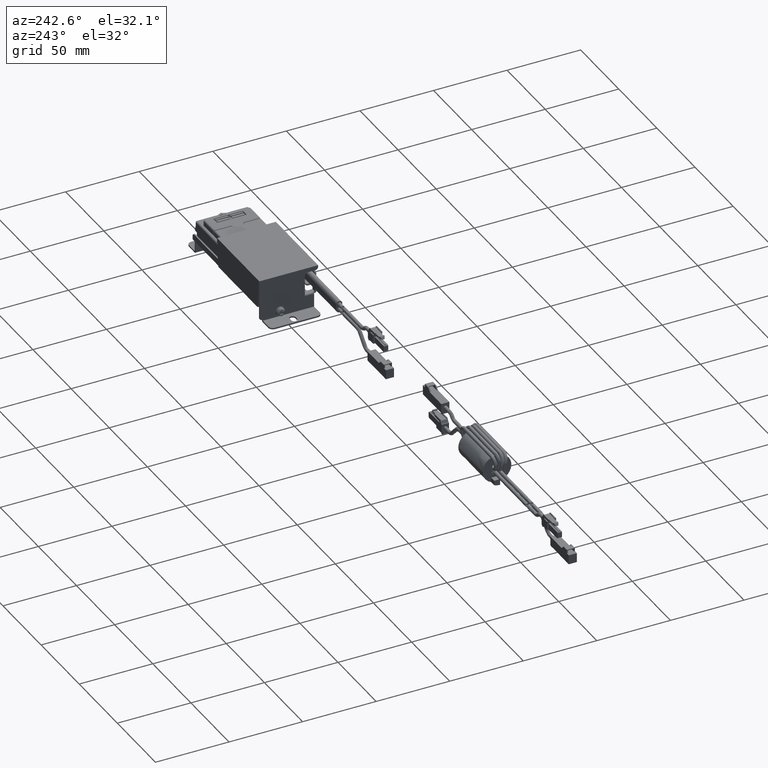
[diagram: clean part render]
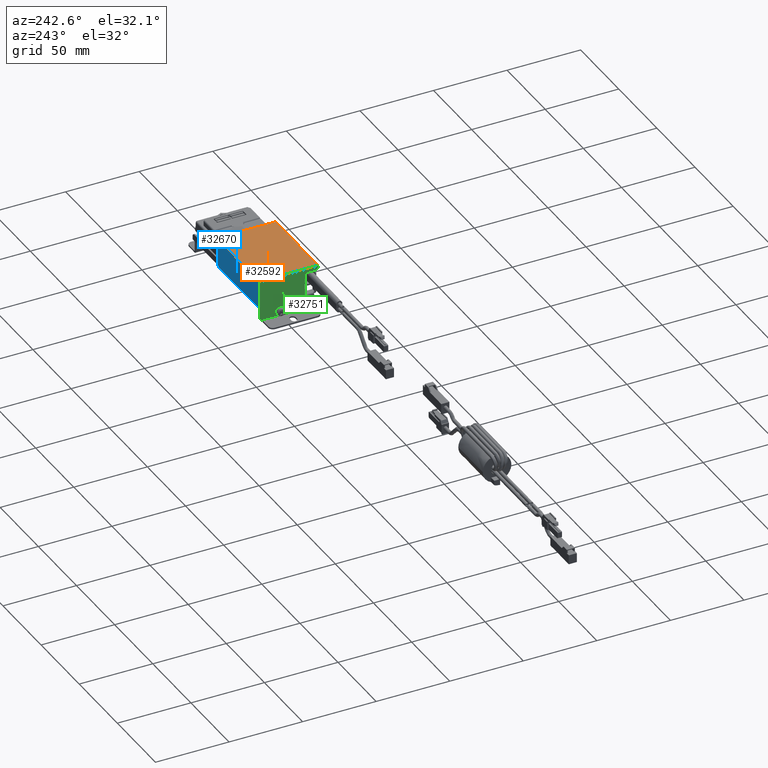
[diagram: same view with three faces highlighted in distinct colors, each labeled with its STEP entity id]
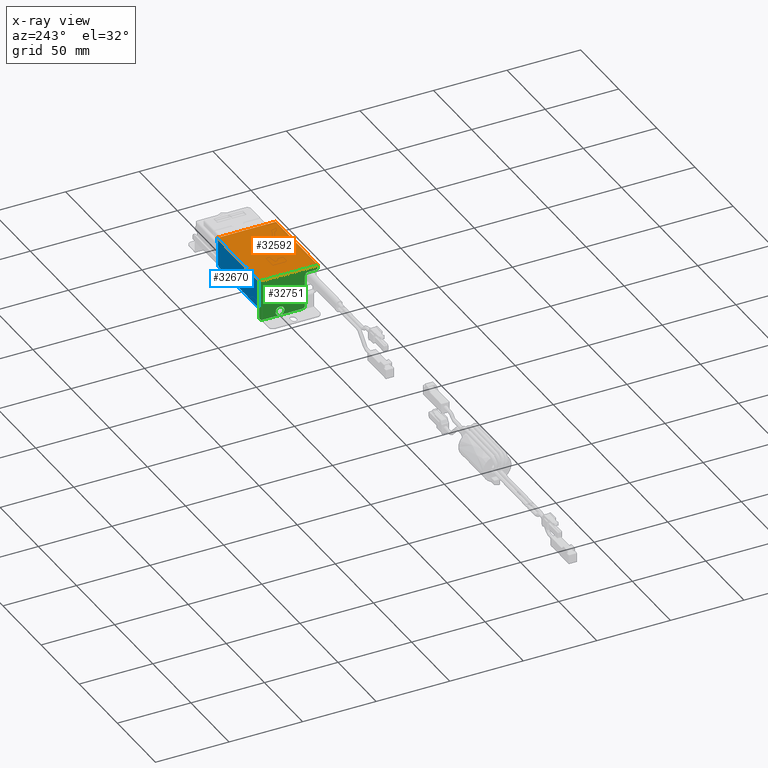
[diagram: x-ray of the same camera — body ghosted, the three highlighted faces saturated]
A machine part, auxiliary view with three faces highlighted in distinct colors.
The next image is the same camera in x-ray (body ghosted, the three faces saturated) — at least one of them is partly hidden behind the body in this view.
Their STEP definitions:

[orange] entity #32592 — the highlighted face is a freeform B-spline surface patch.
#32557=CARTESIAN_POINT('',(-98.757417761772643,21.998011076377260,30.0));
#32558=CARTESIAN_POINT('',(-37.697591944709004,21.998011076377260,30.0));
#32559=CARTESIAN_POINT('',(-98.757417761772643,-21.998012149262159,30.0));
#32560=CARTESIAN_POINT('',(-37.697591944709004,-21.998012149262159,30.0));
#32561=B_SPLINE_SURFACE_WITH_KNOTS('',1,1,((#32557,#32559),(#32558,#32560)),.UNSPECIFIED.,.F.,.F.,.U.,(2,2),(2,2),(0.0,61.059825817063640),(0.0,43.996023225639419),.UNSPECIFIED.);
#32562=CARTESIAN_POINT('',(-95.984494661863692,-20.000010140836299,30.0));
#32563=VERTEX_POINT('',#32562);
#32564=CARTESIAN_POINT('',(-95.984494661863692,20.000010140835549,30.0));
#32565=VERTEX_POINT('',#32564);
#32566=CARTESIAN_POINT('',(-95.984494661863692,-20.000010140836299,30.0));
#32567=CARTESIAN_POINT('',(-95.984494661863692,20.000010140835549,30.0));
#32568=QUASI_UNIFORM_CURVE('',1,(#32566,#32567),.UNSPECIFIED.,.F.,.U.);
#32569=EDGE_CURVE('',#32563,#32565,#32568,.T.);
#32570=ORIENTED_EDGE('',*,*,#32569,.F.);
#32571=CARTESIAN_POINT('',(-40.470516533618898,-20.000010140836299,30.0));
#32572=VERTEX_POINT('',#32571);
#32573=CARTESIAN_POINT('',(-40.470516533618898,-20.000010140836299,30.0));
#32574=CARTESIAN_POINT('',(-95.984494661863692,-20.000010140836299,30.0));
#32575=QUASI_UNIFORM_CURVE('',1,(#32573,#32574),.UNSPECIFIED.,.F.,.U.);
#32576=EDGE_CURVE('',#32572,#32563,#32575,.T.);
#32577=ORIENTED_EDGE('',*,*,#32576,.F.);
#32578=CARTESIAN_POINT('',(-40.470516533618898,20.000010140835549,30.0));
#32579=VERTEX_POINT('',#32578);
#32580=CARTESIAN_POINT('',(-40.470516533618898,20.000010140835549,30.0));
#32581=CARTESIAN_POINT('',(-40.470516533618898,-20.000010140836299,30.0));
#32582=QUASI_UNIFORM_CURVE('',1,(#32580,#32581),.UNSPECIFIED.,.F.,.U.);
#32583=EDGE_CURVE('',#32579,#32572,#32582,.T.);
#32584=ORIENTED_EDGE('',*,*,#32583,.F.);
#32585=CARTESIAN_POINT('',(-95.984494661863692,20.000010140835549,30.0));
#32586=CARTESIAN_POINT('',(-40.470516533618898,20.000010140835549,30.0));
#32587=QUASI_UNIFORM_CURVE('',1,(#32585,#32586),.UNSPECIFIED.,.F.,.U.);
#32588=EDGE_CURVE('',#32565,#32579,#32587,.T.);
#32589=ORIENTED_EDGE('',*,*,#32588,.F.);
#32590=EDGE_LOOP('',(#32570,#32577,#32584,#32589));
#32591=FACE_OUTER_BOUND('',#32590,.T.);
#32592=ADVANCED_FACE('',(#32591),#32561,.F.);

[blue] entity #32670 — the highlighted face is a freeform B-spline surface patch.
#31427=CARTESIAN_POINT('',(-40.970516533618898,20.000010140835549,29.500000000000000));
#31428=VERTEX_POINT('',#31427);
#31469=CARTESIAN_POINT('',(-95.485565534138303,20.000010140835499,29.500000000000000));
#31470=VERTEX_POINT('',#31469);
#31476=CARTESIAN_POINT('',(-94.987650490004995,20.000010140835549,29.500000000000000));
#31477=VERTEX_POINT('',#31476);
#31478=CARTESIAN_POINT('',(-95.485565534138303,20.000010140835499,29.500000000000000));
#31479=CARTESIAN_POINT('',(-94.987650490004995,20.000010140835549,29.500000000000000));
#31480=QUASI_UNIFORM_CURVE('',1,(#31478,#31479),.UNSPECIFIED.,.F.,.U.);
#31481=EDGE_CURVE('',#31470,#31477,#31480,.T.);
#31497=CARTESIAN_POINT('',(-41.467360705477397,20.000010140835499,29.500000000000000));
#31498=VERTEX_POINT('',#31497);
#31504=CARTESIAN_POINT('',(-41.467360705477397,20.000010140835499,29.500000000000000));
#31505=CARTESIAN_POINT('',(-40.970516533618898,20.000010140835549,29.500000000000000));
#31506=QUASI_UNIFORM_CURVE('',1,(#31504,#31505),.UNSPECIFIED.,.F.,.U.);
#31507=EDGE_CURVE('',#31498,#31428,#31506,.T.);
#31526=CARTESIAN_POINT('',(-95.485565534138303,20.000010140835499,3.962616822429930));
#31527=VERTEX_POINT('',#31526);
#31541=CARTESIAN_POINT('',(-95.485565534138303,20.000010140835499,29.500000000000000));
#31542=CARTESIAN_POINT('',(-95.485565534138303,20.000010140835499,3.962616822429930));
#31543=QUASI_UNIFORM_CURVE('',1,(#31541,#31542),.UNSPECIFIED.,.F.,.U.);
#31544=EDGE_CURVE('',#31470,#31527,#31543,.T.);
#31689=CARTESIAN_POINT('',(-40.470516533618898,20.000010140835549,26.952905957944100));
#31690=VERTEX_POINT('',#31689);
#31707=CARTESIAN_POINT('',(-40.970516533618898,20.000010140835549,26.952905957944100));
#31708=VERTEX_POINT('',#31707);
#31718=CARTESIAN_POINT('',(-40.470516533618898,20.000010140835549,26.952905957944100));
#31719=CARTESIAN_POINT('',(-40.970516533618898,20.000010140835549,26.952905957944100));
#31720=QUASI_UNIFORM_CURVE('',1,(#31718,#31719),.UNSPECIFIED.,.F.,.U.);
#31721=EDGE_CURVE('',#31690,#31708,#31720,.T.);
#31731=CARTESIAN_POINT('',(-40.970516533618898,20.000010140835549,26.952905957944100));
#31732=CARTESIAN_POINT('',(-40.970516533618898,20.000010140835549,29.500000000000000));
#31733=QUASI_UNIFORM_CURVE('',1,(#31731,#31732),.UNSPECIFIED.,.F.,.U.);
#31734=EDGE_CURVE('',#31708,#31428,#31733,.T.);
#31840=CARTESIAN_POINT('',(-43.467360705477397,20.000010140835499,10.436299325026100));
#31841=VERTEX_POINT('',#31840);
#31842=CARTESIAN_POINT('',(-41.467360705477397,20.000010140835499,12.436299325026100));
#31843=VERTEX_POINT('',#31842);
#31844=CARTESIAN_POINT('',(-43.467360705477397,20.000010140835499,10.436299325026100));
#31845=CARTESIAN_POINT('',(-41.467360705477404,20.000010140835499,10.436299325026098));
#31846=CARTESIAN_POINT('',(-41.467360705477397,20.000010140835499,12.436299325026100));
#31854=(BOUNDED_CURVE()B_SPLINE_CURVE(2,(#31844,#31845,#31846),.UNSPECIFIED.,.F.,.U.)CURVE()GEOMETRIC_REPRESENTATION_ITEM()QUASI_UNIFORM_CURVE()RATIONAL_B_SPLINE_CURVE((1.0,0.707106781186548,1.0))REPRESENTATION_ITEM(''));
#31855=EDGE_CURVE('',#31841,#31843,#31854,.T.);
#31876=CARTESIAN_POINT('',(-92.987650490004995,20.000010140835499,10.436299325026081));
#31877=VERTEX_POINT('',#31876);
#31878=CARTESIAN_POINT('',(-92.987650490004995,20.000010140835499,10.436299325026081));
#31879=CARTESIAN_POINT('',(-43.467360705477397,20.000010140835499,10.436299325026100));
#31880=QUASI_UNIFORM_CURVE('',1,(#31878,#31879),.UNSPECIFIED.,.F.,.U.);
#31881=EDGE_CURVE('',#31877,#31841,#31880,.T.);
#31907=CARTESIAN_POINT('',(-94.987650490004995,20.000010140835499,12.436299325026081));
#31908=VERTEX_POINT('',#31907);
#31909=CARTESIAN_POINT('',(-94.987650490004995,20.000010140835499,12.436299325026081));
#31910=CARTESIAN_POINT('',(-94.987650490004995,20.000010140835499,10.436299325026081));
#31911=CARTESIAN_POINT('',(-92.987650490004995,20.000010140835499,10.436299325026081));
#31919=(BOUNDED_CURVE()B_SPLINE_CURVE(2,(#31909,#31910,#31911),.UNSPECIFIED.,.F.,.U.)CURVE()GEOMETRIC_REPRESENTATION_ITEM()QUASI_UNIFORM_CURVE()RATIONAL_B_SPLINE_CURVE((1.0,0.707106781186548,1.0))REPRESENTATION_ITEM(''));
#31920=EDGE_CURVE('',#31908,#31877,#31919,.T.);
#31938=CARTESIAN_POINT('',(-94.987650490004995,20.000010140835549,29.500000000000000));
#31939=CARTESIAN_POINT('',(-94.987650490004995,20.000010140835499,12.436299325026081));
#31940=QUASI_UNIFORM_CURVE('',1,(#31938,#31939),.UNSPECIFIED.,.F.,.U.);
#31941=EDGE_CURVE('',#31477,#31908,#31940,.T.);
#31956=CARTESIAN_POINT('',(-41.467360705477397,20.000010140835499,12.436299325026100));
#31957=CARTESIAN_POINT('',(-41.467360705477397,20.000010140835499,29.500000000000000));
#31958=QUASI_UNIFORM_CURVE('',1,(#31956,#31957),.UNSPECIFIED.,.F.,.U.);
#31959=EDGE_CURVE('',#31843,#31498,#31958,.T.);
#32031=CARTESIAN_POINT('',(-95.984494661863692,20.000010140835549,3.962616822429930));
#32032=VERTEX_POINT('',#32031);
#32046=CARTESIAN_POINT('',(-95.485565534138303,20.000010140835499,3.962616822429930));
#32047=CARTESIAN_POINT('',(-95.984494661863692,20.000010140835549,3.962616822429930));
#32048=QUASI_UNIFORM_CURVE('',1,(#32046,#32047),.UNSPECIFIED.,.F.,.U.);
#32049=EDGE_CURVE('',#31527,#32032,#32048,.T.);
#32564=CARTESIAN_POINT('',(-95.984494661863692,20.000010140835549,30.0));
#32565=VERTEX_POINT('',#32564);
#32578=CARTESIAN_POINT('',(-40.470516533618898,20.000010140835549,30.0));
#32579=VERTEX_POINT('',#32578);
#32585=CARTESIAN_POINT('',(-95.984494661863692,20.000010140835549,30.0));
#32586=CARTESIAN_POINT('',(-40.470516533618898,20.000010140835549,30.0));
#32587=QUASI_UNIFORM_CURVE('',1,(#32585,#32586),.UNSPECIFIED.,.F.,.U.);
#32588=EDGE_CURVE('',#32565,#32579,#32587,.T.);
#32634=CARTESIAN_POINT('',(-40.470516533618898,20.000010140835549,26.952905957944100));
#32635=CARTESIAN_POINT('',(-40.470516533618898,20.000010140835549,30.0));
#32636=QUASI_UNIFORM_CURVE('',1,(#32634,#32635),.UNSPECIFIED.,.F.,.U.);
#32637=EDGE_CURVE('',#31690,#32579,#32636,.T.);
#32645=CARTESIAN_POINT('',(-98.757417761772643,20.000010140835549,31.300567239254129));
#32646=CARTESIAN_POINT('',(-98.757417761772643,20.000010140835549,2.662048884798765));
#32647=CARTESIAN_POINT('',(-37.697591944709004,20.000010140835549,31.300567239254129));
#32648=CARTESIAN_POINT('',(-37.697591944709004,20.000010140835549,2.662048884798765));
#32649=B_SPLINE_SURFACE_WITH_KNOTS('',1,1,((#32645,#32647),(#32646,#32648)),.UNSPECIFIED.,.F.,.F.,.U.,(2,2),(2,2),(0.0,28.638518354455361),(0.0,61.059825817063640),.UNSPECIFIED.);
#32650=ORIENTED_EDGE('',*,*,#32637,.F.);
#32651=ORIENTED_EDGE('',*,*,#31721,.T.);
#32652=ORIENTED_EDGE('',*,*,#31734,.T.);
#32653=ORIENTED_EDGE('',*,*,#31507,.F.);
#32654=ORIENTED_EDGE('',*,*,#31959,.F.);
#32655=ORIENTED_EDGE('',*,*,#31855,.F.);
#32656=ORIENTED_EDGE('',*,*,#31881,.F.);
#32657=ORIENTED_EDGE('',*,*,#31920,.F.);
#32658=ORIENTED_EDGE('',*,*,#31941,.F.);
#32659=ORIENTED_EDGE('',*,*,#31481,.F.);
#32660=ORIENTED_EDGE('',*,*,#31544,.T.);
#32661=ORIENTED_EDGE('',*,*,#32049,.T.);
#32662=CARTESIAN_POINT('',(-95.984494661863692,20.000010140835549,3.962616822429930));
#32663=CARTESIAN_POINT('',(-95.984494661863692,20.000010140835549,30.0));
#32664=QUASI_UNIFORM_CURVE('',1,(#32662,#32663),.UNSPECIFIED.,.F.,.U.);
#32665=EDGE_CURVE('',#32032,#32565,#32664,.T.);
#32666=ORIENTED_EDGE('',*,*,#32665,.T.);
#32667=ORIENTED_EDGE('',*,*,#32588,.T.);
#32668=EDGE_LOOP('',(#32650,#32651,#32652,#32653,#32654,#32655,#32656,#32657,#32658,#32659,#32660,#32661,#32666,#32667));
#32669=FACE_OUTER_BOUND('',#32668,.T.);
#32670=ADVANCED_FACE('',(#32669),#32649,.F.);

[green] entity #32751 — the highlighted face is a freeform B-spline surface patch.
#31979=CARTESIAN_POINT('',(-95.984494661863394,-10.999989859164501,3.962616822429935));
#31980=VERTEX_POINT('',#31979);
#31986=CARTESIAN_POINT('',(-95.984494661863394,-8.999989859164502,1.962616822429935));
#31987=VERTEX_POINT('',#31986);
#31988=CARTESIAN_POINT('',(-95.984494661863692,-8.999989859164502,1.962616822429935));
#31989=CARTESIAN_POINT('',(-95.984494661863707,-10.999989859164502,1.962616822429935));
#31990=CARTESIAN_POINT('',(-95.984494661863692,-10.999989859164501,3.962616822429935));
#31998=(BOUNDED_CURVE()B_SPLINE_CURVE(2,(#31988,#31989,#31990),.UNSPECIFIED.,.F.,.U.)CURVE()GEOMETRIC_REPRESENTATION_ITEM()QUASI_UNIFORM_CURVE()RATIONAL_B_SPLINE_CURVE((1.0,0.707106781186548,1.0))REPRESENTATION_ITEM(''));
#31999=EDGE_CURVE('',#31987,#31980,#31998,.T.);
#32024=CARTESIAN_POINT('',(-95.984494661863394,18.000010140835499,1.962616822429935));
#32025=VERTEX_POINT('',#32024);
#32031=CARTESIAN_POINT('',(-95.984494661863692,20.000010140835549,3.962616822429930));
#32032=VERTEX_POINT('',#32031);
#32033=CARTESIAN_POINT('',(-95.984494661863692,20.000010140835549,3.962616822429930));
#32034=CARTESIAN_POINT('',(-95.984494661863707,20.000010140835556,1.962616822429930));
#32035=CARTESIAN_POINT('',(-95.984494661863692,18.000010140835549,1.962616822429930));
#32043=(BOUNDED_CURVE()B_SPLINE_CURVE(2,(#32033,#32034,#32035),.UNSPECIFIED.,.F.,.U.)CURVE()GEOMETRIC_REPRESENTATION_ITEM()QUASI_UNIFORM_CURVE()RATIONAL_B_SPLINE_CURVE((1.0,0.707106781186548,1.0))REPRESENTATION_ITEM(''));
#32044=EDGE_CURVE('',#32032,#32025,#32043,.T.);
#32069=CARTESIAN_POINT('',(-95.984494661863692,-20.000010140836299,29.0));
#32070=VERTEX_POINT('',#32069);
#32076=CARTESIAN_POINT('',(-95.984494661863593,-18.000010140836299,27.0));
#32077=VERTEX_POINT('',#32076);
#32078=CARTESIAN_POINT('',(-95.984494661863692,-18.000010140836299,27.0));
#32079=CARTESIAN_POINT('',(-95.984494661863707,-20.000010140836306,27.000000000000011));
#32080=CARTESIAN_POINT('',(-95.984494661863692,-20.000010140836299,29.0));
#32088=(BOUNDED_CURVE()B_SPLINE_CURVE(2,(#32078,#32079,#32080),.UNSPECIFIED.,.F.,.U.)CURVE()GEOMETRIC_REPRESENTATION_ITEM()QUASI_UNIFORM_CURVE()RATIONAL_B_SPLINE_CURVE((1.0,0.707106781186548,1.0))REPRESENTATION_ITEM(''));
#32089=EDGE_CURVE('',#32077,#32070,#32088,.T.);
#32114=CARTESIAN_POINT('',(-95.984494661863593,-12.999989859164501,27.0));
#32115=VERTEX_POINT('',#32114);
#32121=CARTESIAN_POINT('',(-95.984494661863593,-10.999989859164501,25.0));
#32122=VERTEX_POINT('',#32121);
#32123=CARTESIAN_POINT('',(-95.984494661863593,-10.999989859164501,25.0));
#32124=CARTESIAN_POINT('',(-95.984494661863650,-10.996412355895060,25.492103746930109));
#32125=CARTESIAN_POINT('',(-95.984494661863806,-11.316906515024639,26.304829202208321));
#32126=CARTESIAN_POINT('',(-95.984494661863820,-12.214554579702121,26.903894178080701));
#32127=CARTESIAN_POINT('',(-95.984494661863451,-12.770976062739759,27.000036677265619));
#32128=CARTESIAN_POINT('',(-95.984494661863593,-12.999989859164501,27.0));
#32129=B_SPLINE_CURVE_WITH_KNOTS('',3,(#32123,#32124,#32125,#32126,#32127,#32128),.UNSPECIFIED.,.F.,.U.,(4,1,1,4),(0.000004423942978,1.473088834517658,2.454632555291036,3.141907768738584),.UNSPECIFIED.);
#32130=EDGE_CURVE('',#32122,#32115,#32129,.T.);
#32145=CARTESIAN_POINT('',(-95.984494661863593,-18.000010140836299,27.0));
#32146=CARTESIAN_POINT('',(-95.984494661863593,-12.999989859164501,27.0));
#32147=QUASI_UNIFORM_CURVE('',1,(#32145,#32146),.UNSPECIFIED.,.F.,.U.);
#32148=EDGE_CURVE('',#32077,#32115,#32147,.T.);
#32161=CARTESIAN_POINT('',(-95.984494661863394,-10.999989859164501,3.962616822429935));
#32162=CARTESIAN_POINT('',(-95.984494661863593,-10.999989859164501,25.0));
#32163=QUASI_UNIFORM_CURVE('',1,(#32161,#32162),.UNSPECIFIED.,.F.,.U.);
#32164=EDGE_CURVE('',#31980,#32122,#32163,.T.);
#32177=CARTESIAN_POINT('',(-95.984494661863692,5.981065031152370,1.962616822429935));
#32178=VERTEX_POINT('',#32177);
#32179=CARTESIAN_POINT('',(-95.984494661863394,-8.999989859164502,1.962616822429935));
#32180=CARTESIAN_POINT('',(-95.984494661863692,5.981065031152370,1.962616822429935));
#32181=QUASI_UNIFORM_CURVE('',1,(#32179,#32180),.UNSPECIFIED.,.F.,.U.);
#32182=EDGE_CURVE('',#31987,#32178,#32181,.T.);
#32184=CARTESIAN_POINT('',(-95.984494661863692,5.981065031152370,1.962616822429935));
#32185=CARTESIAN_POINT('',(-95.984494661863394,18.000010140835499,1.962616822429935));
#32186=QUASI_UNIFORM_CURVE('',1,(#32184,#32185),.UNSPECIFIED.,.F.,.U.);
#32187=EDGE_CURVE('',#32178,#32025,#32186,.T.);
#32562=CARTESIAN_POINT('',(-95.984494661863692,-20.000010140836299,30.0));
#32563=VERTEX_POINT('',#32562);
#32564=CARTESIAN_POINT('',(-95.984494661863692,20.000010140835549,30.0));
#32565=VERTEX_POINT('',#32564);
#32566=CARTESIAN_POINT('',(-95.984494661863692,-20.000010140836299,30.0));
#32567=CARTESIAN_POINT('',(-95.984494661863692,20.000010140835549,30.0));
#32568=QUASI_UNIFORM_CURVE('',1,(#32566,#32567),.UNSPECIFIED.,.F.,.U.);
#32569=EDGE_CURVE('',#32563,#32565,#32568,.T.);
#32606=CARTESIAN_POINT('',(-95.984494661863692,-20.000010140836299,29.0));
#32607=CARTESIAN_POINT('',(-95.984494661863692,-20.000010140836299,30.0));
#32608=QUASI_UNIFORM_CURVE('',1,(#32606,#32607),.UNSPECIFIED.,.F.,.U.);
#32609=EDGE_CURVE('',#32070,#32563,#32608,.T.);
#32662=CARTESIAN_POINT('',(-95.984494661863692,20.000010140835549,3.962616822429930));
#32663=CARTESIAN_POINT('',(-95.984494661863692,20.000010140835549,30.0));
#32664=QUASI_UNIFORM_CURVE('',1,(#32662,#32663),.UNSPECIFIED.,.F.,.U.);
#32665=EDGE_CURVE('',#32032,#32565,#32664,.T.);
#32671=CARTESIAN_POINT('',(-95.984494661863692,-21.998011076378010,31.400467235377739));
#32672=CARTESIAN_POINT('',(-95.984494661863692,-21.998011076378010,0.562148835030979));
#32673=CARTESIAN_POINT('',(-95.984494661863692,21.998012149261410,31.400467235377739));
#32674=CARTESIAN_POINT('',(-95.984494661863692,21.998012149261410,0.562148835030979));
#32675=B_SPLINE_SURFACE_WITH_KNOTS('',1,1,((#32671,#32673),(#32672,#32674)),.UNSPECIFIED.,.F.,.F.,.U.,(2,2),(2,2),(0.0,30.838318400346761),(0.0,43.996023225639419),.UNSPECIFIED.);
#32676=ORIENTED_EDGE('',*,*,#32187,.F.);
#32677=CARTESIAN_POINT('',(-95.984494661863692,8.966019600760035,5.135716980534365));
#32678=VERTEX_POINT('',#32677);
#32679=CARTESIAN_POINT('',(-95.984494661863692,8.966019600760037,5.135716980534365));
#32680=CARTESIAN_POINT('',(-95.984494661863692,8.971597546728804,5.044518370101816));
#32681=CARTESIAN_POINT('',(-95.984494661863692,8.971597546728804,4.953149338006370));
#32682=CARTESIAN_POINT('',(-95.984494661863707,8.971597546728804,1.962616822429935));
#32683=CARTESIAN_POINT('',(-95.984494661863692,5.981065031152370,1.962616822429935));
#32691=(BOUNDED_CURVE()B_SPLINE_CURVE(2,(#32679,#32680,#32681,#32682,#32683),.UNSPECIFIED.,.F.,.U.)B_SPLINE_CURVE_WITH_KNOTS((3,2,3),(0.739332962240780,0.750000000000000,1.0),.UNSPECIFIED.)CURVE()GEOMETRIC_REPRESENTATION_ITEM()RATIONAL_B_SPLINE_CURVE((0.976072041670656,0.987502787901990,1.0,0.707106781186547,1.0))REPRESENTATION_ITEM(''));
#32692=EDGE_CURVE('',#32678,#32178,#32691,.T.);
#32693=ORIENTED_EDGE('',*,*,#32692,.F.);
#32694=CARTESIAN_POINT('',(-95.984494661863692,5.981065031152370,7.943681853582804));
#32695=VERTEX_POINT('',#32694);
#32696=CARTESIAN_POINT('',(-95.984494661863692,5.981065031152370,7.943681853582804));
#32697=CARTESIAN_POINT('',(-95.984494661863692,8.794277111814466,7.943681853582804));
#32698=CARTESIAN_POINT('',(-95.984494661863692,8.966019600760037,5.135716980534365));
#32706=(BOUNDED_CURVE()B_SPLINE_CURVE(2,(#32696,#32697,#32698),.UNSPECIFIED.,.F.,.U.)B_SPLINE_CURVE_WITH_KNOTS((3,3),(0.500000000000000,0.739332962240780),.UNSPECIFIED.)CURVE()GEOMETRIC_REPRESENTATION_ITEM()RATIONAL_B_SPLINE_CURVE((1.0,0.719603993284557,0.976072041670656))REPRESENTATION_ITEM(''));
#32707=EDGE_CURVE('',#32695,#32678,#32706,.T.);
#32708=ORIENTED_EDGE('',*,*,#32707,.F.);
#32709=CARTESIAN_POINT('',(-95.984494661863692,2.996110461544704,4.770581695478374));
#32710=VERTEX_POINT('',#32709);
#32711=CARTESIAN_POINT('',(-95.984494661863678,2.996110461544702,4.770581695478373));
#32712=CARTESIAN_POINT('',(-95.984494661863678,2.990532515575934,4.861780305910924));
#32713=CARTESIAN_POINT('',(-95.984494661863692,2.990532515575934,4.953149338006370));
#32714=CARTESIAN_POINT('',(-95.984494661863707,2.990532515575934,7.943681853582804));
#32715=CARTESIAN_POINT('',(-95.984494661863692,5.981065031152370,7.943681853582804));
#32723=(BOUNDED_CURVE()B_SPLINE_CURVE(2,(#32711,#32712,#32713,#32714,#32715),.UNSPECIFIED.,.F.,.U.)B_SPLINE_CURVE_WITH_KNOTS((3,2,3),(0.239332962240780,0.250000000000000,0.500000000000000),.UNSPECIFIED.)CURVE()GEOMETRIC_REPRESENTATION_ITEM()RATIONAL_B_SPLINE_CURVE((0.976072041670655,0.987502787901990,1.0,0.707106781186547,1.0))REPRESENTATION_ITEM(''));
#32724=EDGE_CURVE('',#32710,#32695,#32723,.T.);
#32725=ORIENTED_EDGE('',*,*,#32724,.F.);
#32726=CARTESIAN_POINT('',(-95.984494661863692,5.981065031152370,1.962616822429935));
#32727=CARTESIAN_POINT('',(-95.984494661863692,3.167852950490275,1.962616822429935));
#32728=CARTESIAN_POINT('',(-95.984494661863692,2.996110461544702,4.770581695478373));
#32736=(BOUNDED_CURVE()B_SPLINE_CURVE(2,(#32726,#32727,#32728),.UNSPECIFIED.,.F.,.U.)B_SPLINE_CURVE_WITH_KNOTS((3,3),(0.0,0.239332962240780),.UNSPECIFIED.)CURVE()GEOMETRIC_REPRESENTATION_ITEM()RATIONAL_B_SPLINE_CURVE((1.0,0.719603993284558,0.976072041670655))REPRESENTATION_ITEM(''));
#32737=EDGE_CURVE('',#32178,#32710,#32736,.T.);
#32738=ORIENTED_EDGE('',*,*,#32737,.F.);
#32739=ORIENTED_EDGE('',*,*,#32182,.F.);
#32740=ORIENTED_EDGE('',*,*,#31999,.T.);
#32741=ORIENTED_EDGE('',*,*,#32164,.T.);
#32742=ORIENTED_EDGE('',*,*,#32130,.T.);
#32743=ORIENTED_EDGE('',*,*,#32148,.F.);
#32744=ORIENTED_EDGE('',*,*,#32089,.T.);
#32745=ORIENTED_EDGE('',*,*,#32609,.T.);
#32746=ORIENTED_EDGE('',*,*,#32569,.T.);
#32747=ORIENTED_EDGE('',*,*,#32665,.F.);
#32748=ORIENTED_EDGE('',*,*,#32044,.T.);
#32749=EDGE_LOOP('',(#32676,#32693,#32708,#32725,#32738,#32739,#32740,#32741,#32742,#32743,#32744,#32745,#32746,#32747,#32748));
#32750=FACE_OUTER_BOUND('',#32749,.T.);
#32751=ADVANCED_FACE('',(#32750),#32675,.F.);